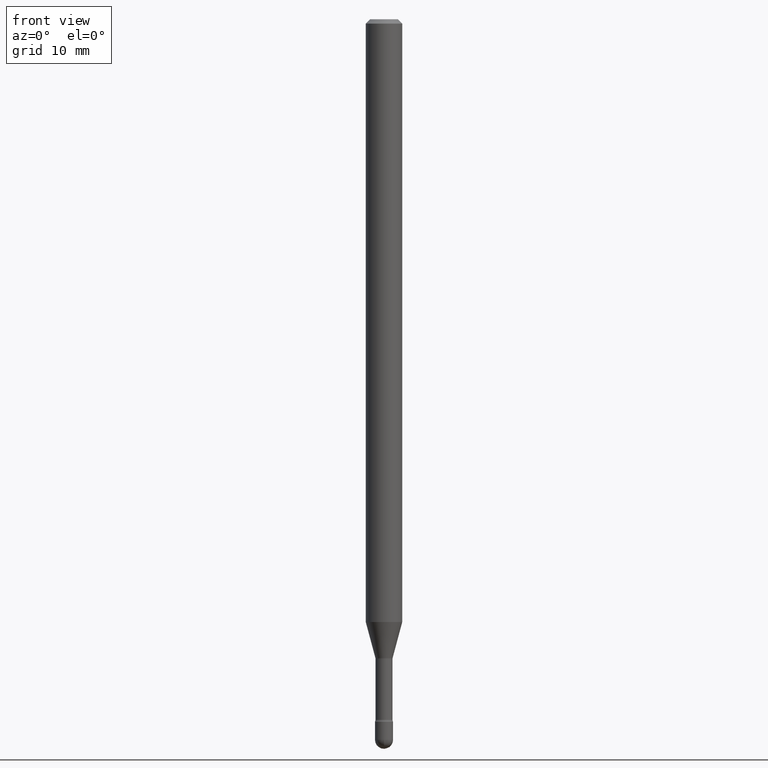
[diagram: clean part render]
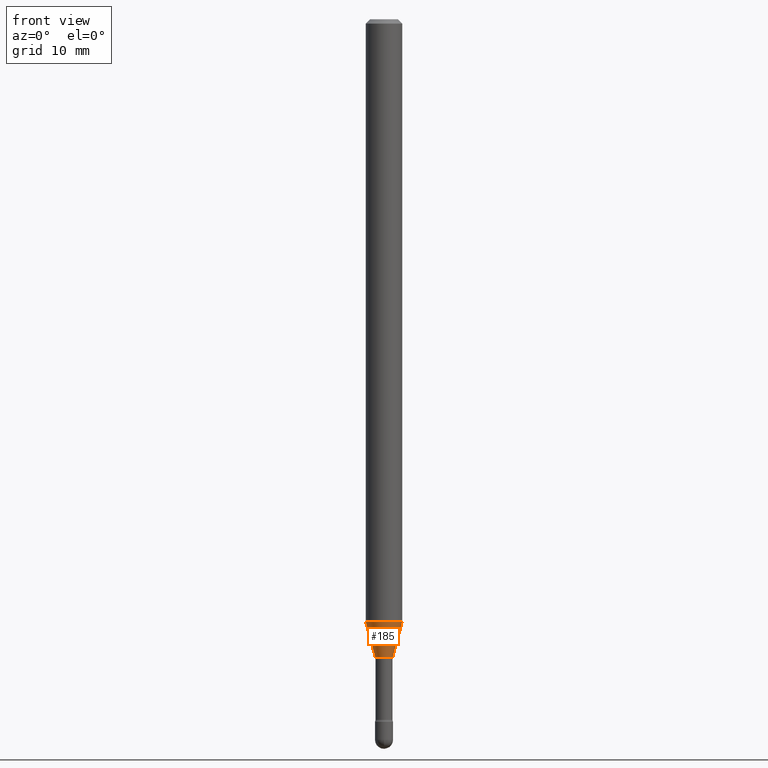
[diagram: same view with one face highlighted and labeled with its STEP entity id]
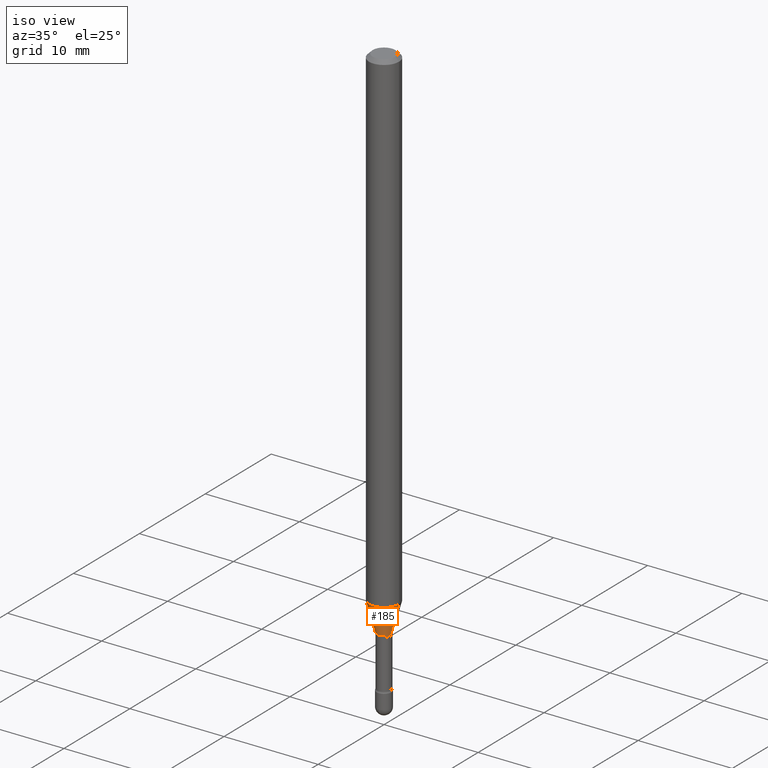
[diagram: same view with one face highlighted and labeled with its STEP entity id]
A machine part, front view. The second image highlights one B-rep face of the part: STEP entity #185.
A second angle (iso view) of the same face is appended — the face is thin or edge-on in the first view.
In plain terms, the highlighted conical surface has half-angle 15 deg.
Its self-contained STEP definition (entity closure, byte-faithful):
#5 = DIRECTION ( 'NONE',  ( -2.445468806185136597E-29, 3.491481338843145583E-15, 1.000000000000000000 ) ) ;
#17 = ORIENTED_EDGE ( 'NONE', *, *, #234, .F. ) ;
#43 = AXIS2_PLACEMENT_3D ( 'NONE', #507, #119, #208 ) ;
#48 = DIRECTION ( 'NONE',  ( 0.2588190451025209060, 1.565188264969625123E-15, 0.9659258262890682012 ) ) ;
#54 = CARTESIAN_POINT ( 'NONE',  ( -0.02966111260566397720, -7.428929256687707103E-15, -2.188092501787273214 ) ) ;
#58 = VECTOR ( 'NONE', #48, 39.37007874015748143 ) ;
#77 = ORIENTED_EDGE ( 'NONE', *, *, #363, .T. ) ;
#94 = CARTESIAN_POINT ( 'NONE',  ( 0.02966111260566397720, -7.846806579956877732E-15, -2.188092501787273214 ) ) ;
#100 = CARTESIAN_POINT ( 'NONE',  ( 5.350911958168372383E-29, -7.639684137652876480E-15, -2.188092501787273214 ) ) ;
#119 = DIRECTION ( 'NONE',  ( -2.445468806185136597E-29, 3.491481338843145583E-15, 1.000000000000000000 ) ) ;
#147 = CIRCLE ( 'NONE', #475, 0.02966111260566397720 ) ;
#161 = CARTESIAN_POINT ( 'NONE',  ( -0.06250000000000000000, -6.767691557445882017E-15, -2.065536105567578051 ) ) ;
#170 = CARTESIAN_POINT ( 'NONE',  ( 0.02966111260566397720, -7.846806579956877732E-15, -2.188092501787273214 ) ) ;
#175 = DIRECTION ( 'NONE',  ( 1.000000000000000000, -6.982962677686269077E-15, 0.000000000000000000 ) ) ;
#176 = AXIS2_PLACEMENT_3D ( 'NONE', #498, #418, #235 ) ;
#179 = ORIENTED_EDGE ( 'NONE', *, *, #439, .F. ) ;
#185 = ADVANCED_FACE ( 'NONE', ( #535 ), #214, .T. ) ;
#201 = VERTEX_POINT ( 'NONE', #228 ) ;
#208 = DIRECTION ( 'NONE',  ( 1.000000000000000000, -6.982962677686262766E-15, 0.000000000000000000 ) ) ;
#214 = CONICAL_SURFACE ( 'NONE', #176, 0.02966111260566397720, 0.2617993877991495744 ) ;
#226 = DIRECTION ( 'NONE',  ( -0.2588190451025209060, 5.211531920934547097E-15, 0.9659258262890682012 ) ) ;
#228 = CARTESIAN_POINT ( 'NONE',  ( -0.02966111260566397720, -7.098310407066794166E-15, -2.188092501787273214 ) ) ;
#230 = VERTEX_POINT ( 'NONE', #161 ) ;
#234 = EDGE_CURVE ( 'NONE', #230, #348, #267, .T. ) ;
#235 = DIRECTION ( 'NONE',  ( 1.000000000000000000, -6.982962677686269077E-15, 0.000000000000000000 ) ) ;
#267 = CIRCLE ( 'NONE', #43, 0.06250000000000000000 ) ;
#348 = VERTEX_POINT ( 'NONE', #541 ) ;
#363 = EDGE_CURVE ( 'NONE', #201, #381, #147, .T. ) ;
#381 = VERTEX_POINT ( 'NONE', #94 ) ;
#393 = EDGE_LOOP ( 'NONE', ( #179, #77, #466, #17 ) ) ;
#418 = DIRECTION ( 'NONE',  ( -2.445468806185136597E-29, 3.491481338843145583E-15, 1.000000000000000000 ) ) ;
#439 = EDGE_CURVE ( 'NONE', #201, #230, #540, .T. ) ;
#466 = ORIENTED_EDGE ( 'NONE', *, *, #534, .T. ) ;
#470 = LINE ( 'NONE', #170, #58 ) ;
#475 = AXIS2_PLACEMENT_3D ( 'NONE', #100, #5, #175 ) ;
#498 = CARTESIAN_POINT ( 'NONE',  ( 5.350911958168372383E-29, -7.639684137652876480E-15, -2.188092501787273214 ) ) ;
#507 = CARTESIAN_POINT ( 'NONE',  ( 5.051204114214641690E-29, -7.211780767295945422E-15, -2.065536105567578051 ) ) ;
#534 = EDGE_CURVE ( 'NONE', #381, #348, #470, .T. ) ;
#535 = FACE_OUTER_BOUND ( 'NONE', #393, .T. ) ;
#540 = LINE ( 'NONE', #54, #547 ) ;
#541 = CARTESIAN_POINT ( 'NONE',  ( 0.06250000000000000000, -7.648215934651337091E-15, -2.065536105567578051 ) ) ;
#547 = VECTOR ( 'NONE', #226, 39.37007874015748143 ) ;